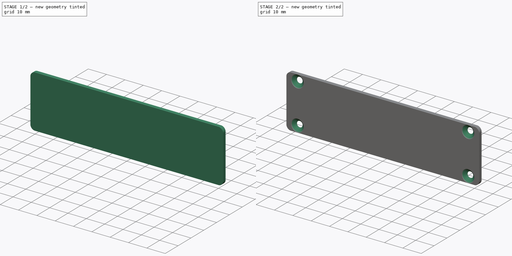
[diagram: build sequence overview — one tinted view per stage of 2, left to right]
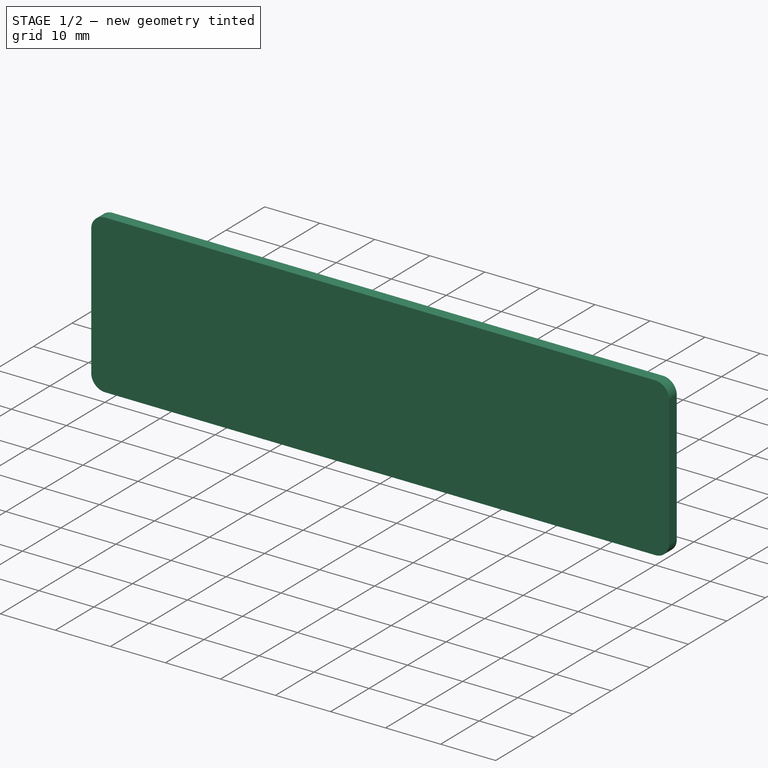
[diagram: stage 1 of 2 — iso view after this stage's code; geometry added in this stage tinted green]
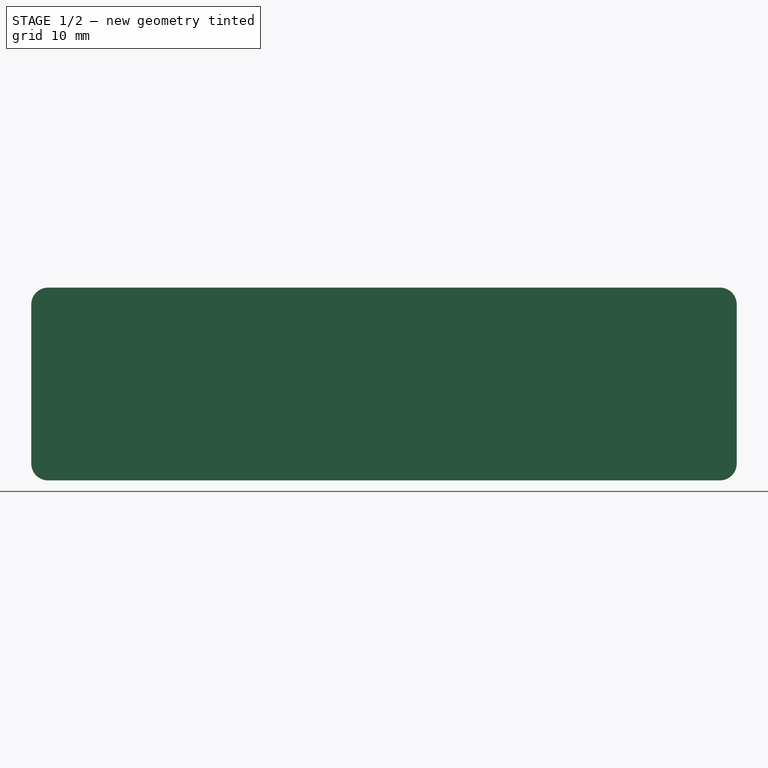
[diagram: stage 1 of 2 — front view after this stage's code; geometry added in this stage tinted green]
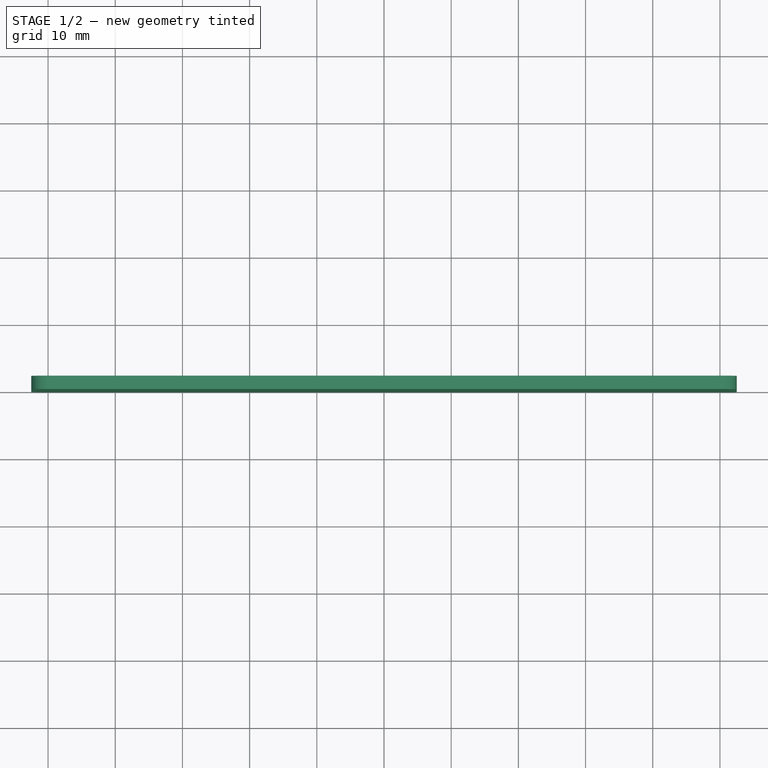
[diagram: stage 1 of 2 — top view after this stage's code; geometry added in this stage tinted green]
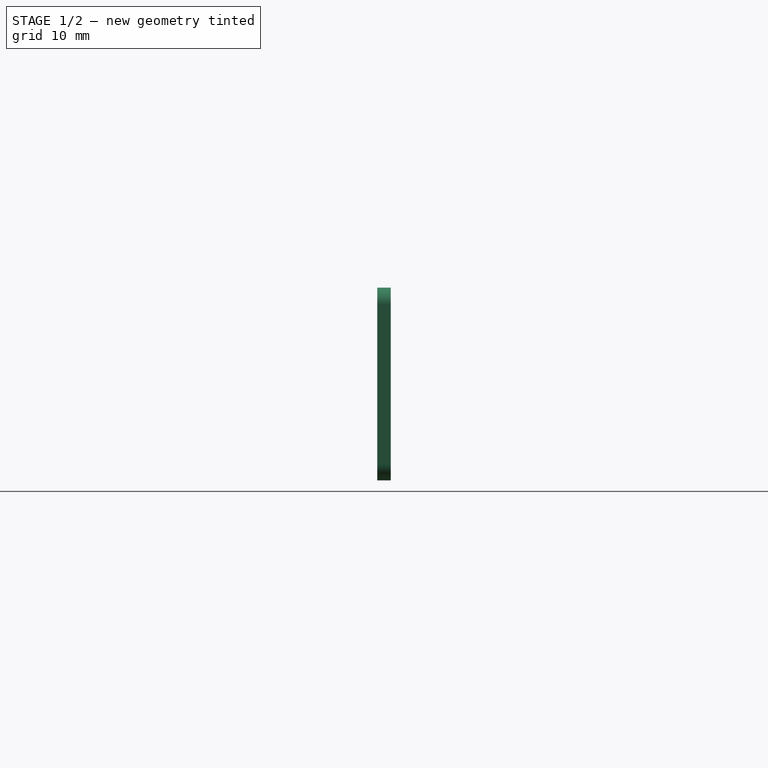
[diagram: stage 1 of 2 — right view after this stage's code; geometry added in this stage tinted green]
FCSTD DOCUMENT  (FreeCAD 0.19R24267 +99 (Git))
Label: KOH_Plate_Back
License: All rights reserved
LicenseURL: http://en.wikipedia.org/wiki/All_rights_reserved
objects: Sketcher::SketchObject×2, PartDesign::CoordinateSystem×2, PartDesign::Pad×1, PartDesign::Fillet×1, PartDesign::Hole×1, PartDesign::Body×1, App::Part×1
note: 11 computed .brp shape members not serialized (recipe doc carries the construction recipe); baked Part::Feature solids carry a one-line shape summary decoded from their .brp

FEATURE [Sketcher::SketchObject] Sketch
  FullyConstrained = true
  MapMode = 5
  Placement = pos=(0,0,0) rot=(1,0,0;1.5708rad)
  Support = -> [XZ_Plane]
  sketch-geometry (4):
    g0: LineSegment StartX=-52.5 StartY=-14.35 StartZ=0 EndX=52.5 EndY=-14.35 EndZ=0
    g1: LineSegment StartX=52.5 StartY=-14.35 StartZ=0 EndX=52.5 EndY=14.35 EndZ=0
    g2: LineSegment StartX=52.5 StartY=14.35 StartZ=0 EndX=-52.5 EndY=14.35 EndZ=0
    g3: LineSegment StartX=-52.5 StartY=14.35 StartZ=0 EndX=-52.5 EndY=-14.35 EndZ=0
  constraints (10):
    c: Coincident(g0,g1)
    c: Coincident(g1,g2)
    c: Coincident(g2,g3)
    c: Coincident(g3,g0)
    c: Horizontal(g0)
    c: Vertical(g1)
    c: Symmetric(g2,g0,g-1)
    c: Symmetric(g2,g1,g-2)
    c: Distance(g2) = 105
    c: Distance(g3) = 28.7
FEATURE [PartDesign::Pad] Pad
  Direction = (1,1,1)
  Length = 2
  Length2 = 100
  Placement = pos=(0,0,0) rot=(1,0,0;1.5708rad)
  Profile = -> Sketch
  Refine = true
  Reversed = true
  Type = 0
FEATURE [PartDesign::Fillet] Fillet
  Base = -> Pad [Edge5,Edge2,Edge8,Edge1]
  BaseFeature = -> Pad
  Placement = pos=(0,0,0) rot=(1,0,0;1.5708rad)
  Radius = 2.5
  Refine = true
  SupportTransform = false
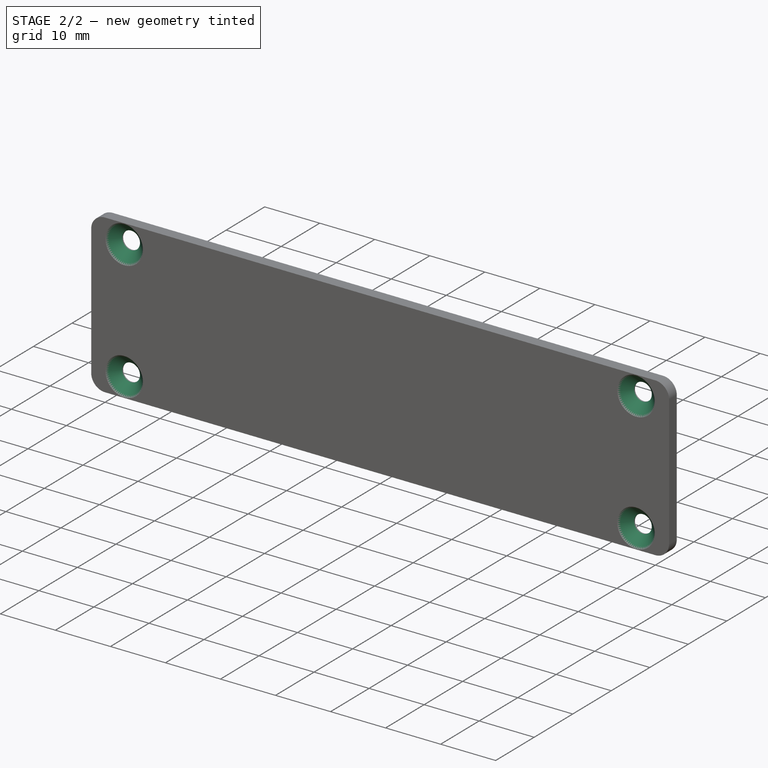
[diagram: stage 2 of 2 — iso view after this stage's code; geometry added in this stage tinted green]
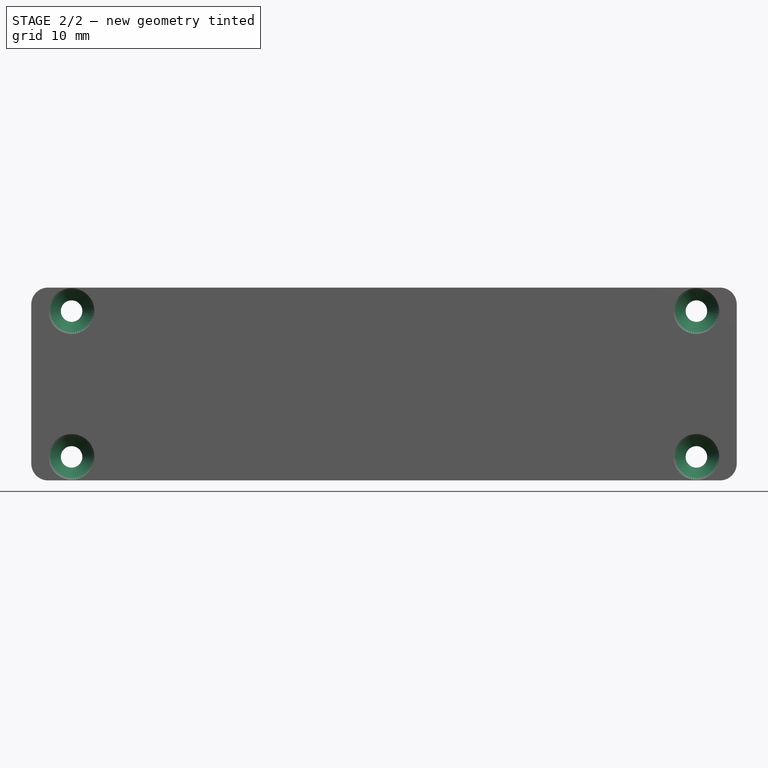
[diagram: stage 2 of 2 — front view after this stage's code; geometry added in this stage tinted green]
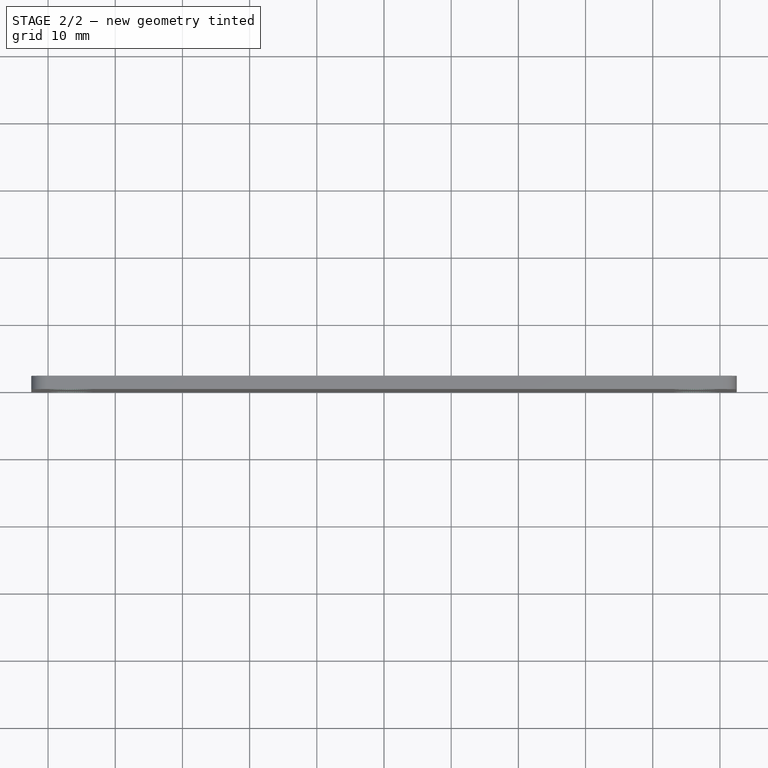
[diagram: stage 2 of 2 — top view after this stage's code; geometry added in this stage tinted green]
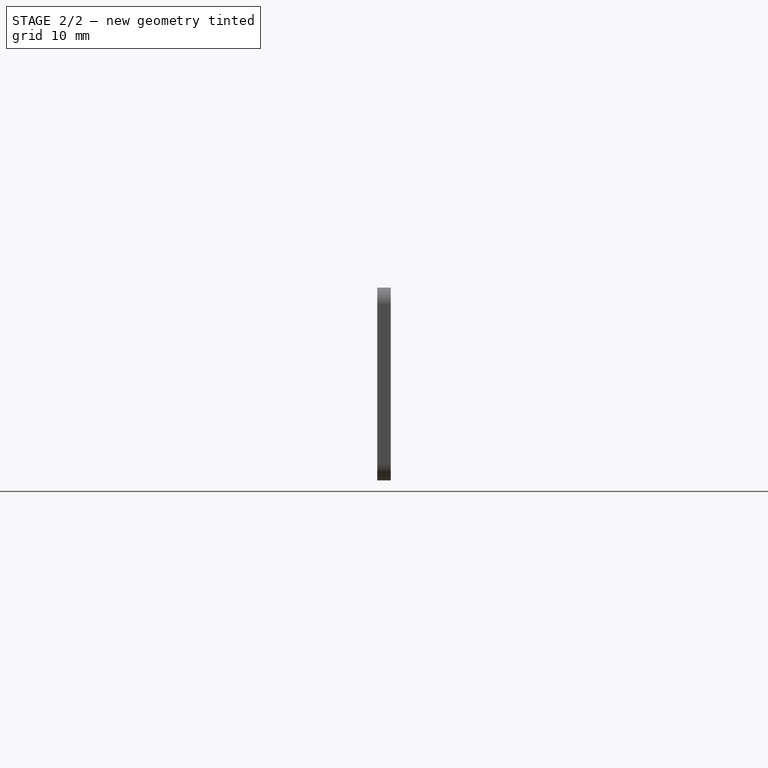
[diagram: stage 2 of 2 — right view after this stage's code; geometry added in this stage tinted green]
FEATURE [Sketcher::SketchObject] Sketch001
  FullyConstrained = true
  MapMode = 5
  Placement = pos=(0,0,0) rot=(1,0,0;1.5708rad)
  Support = -> [XZ_Plane]
  expr: Constraints[9] = Sketch.Constraints[9]
  expr: Constraints[8] = Sketch.Constraints[8]
  sketch-geometry (8):
    g0: LineSegment StartX=-52.5 StartY=-14.35 StartZ=0 EndX=52.5 EndY=-14.35 EndZ=0
    g1: LineSegment StartX=52.5 StartY=-14.35 StartZ=0 EndX=52.5 EndY=14.35 EndZ=0
    g2: LineSegment StartX=52.5 StartY=14.35 StartZ=0 EndX=-52.5 EndY=14.35 EndZ=0
    g3: LineSegment StartX=-52.5 StartY=14.35 StartZ=0 EndX=-52.5 EndY=-14.35 EndZ=0
    g4: Circle CenterX=46.5 CenterY=10.85 CenterZ=0 NormalX=0 NormalY=0 NormalZ=1 AngleXU=0 Radius=1.6
    g5: Circle CenterX=46.5 CenterY=-10.85 CenterZ=0 NormalX=0 NormalY=0 NormalZ=1 AngleXU=0 Radius=1.6
    g6: Circle CenterX=-46.5 CenterY=-10.85 CenterZ=0 NormalX=0 NormalY=0 NormalZ=1 AngleXU=0 Radius=1.6
    g7: Circle CenterX=-46.5 CenterY=10.85 CenterZ=0 NormalX=0 NormalY=0 NormalZ=1 AngleXU=0 Radius=1.6
  constraints (19):
    c: Coincident(g0,g1)
    c: Coincident(g1,g2)
    c: Coincident(g2,g3)
    c: Coincident(g3,g0)
    c: Horizontal(g0)
    c: Vertical(g1)
    c: Symmetric(g2,g0,g-1)
    c: Symmetric(g2,g1,g-2)
    c: Distance(g2) = 105
    c: Distance(g3) = 28.7
    c: Distance(g4,g2) = 3.5
    c: DistanceX(g-2,g4) = 46.5
    c: Diameter(g4) = 3.2
    c: Diameter(g5) = 3.2
    c: Symmetric(g5,g4,g-1)
    c: Diameter(g7) = 3.2
    c: Diameter(g6) = 3.2
    c: Symmetric(g7,g6,g-1)
    c: Symmetric(g7,g4,g-2)
FEATURE [PartDesign::Hole] Hole
  BaseFeature = -> Fillet
  Depth = 25
  DepthType = 0
  Diameter = 3.2
  DrillForDepth = false
  DrillPoint = 1
  DrillPointAngle = 118
  HoleCutCountersinkAngle = 90
  HoleCutCustomValues = false
  HoleCutDepth = 0
  HoleCutDiameter = 6.8
  HoleCutType = 2
  ModelActualThread = false
  Placement = pos=(0,0,0) rot=(1,0,0;1.5708rad)
  Profile = -> Sketch001
  Refine = true
  Tapered = false
  TaperedAngle = 90
  ThreadAngle = 0
  ThreadClass = 0
  ThreadCutOffInner = 0
  ThreadCutOffOuter = 0
  ThreadDirection = 0
  ThreadFit = 0
  ThreadPitch = 0
  ThreadSize = 0
  ThreadType = 0
  Threaded = false
FEATURE [PartDesign::Body] Body
  Group = -> [Sketch,Pad,Fillet,Sketch001,Hole]
  Origin = -> Origin
  Tip = -> Hole
FEATURE [PartDesign::CoordinateSystem] LCS_0  label="LCS_PlateBack_Center"
  AttacherType = Attacher::AttachEngine3D
  MapMode = 2
  Support = -> [X_Axis001]
FEATURE [PartDesign::CoordinateSystem] LCS_Plate_Back_CornerBottom
  AttacherType = Attacher::AttachEngine3D
  AttachmentOffset = pos=(52.5,-14.35,0) rot=(0,0.707107,0.707107;3.14159rad)
  MapMode = 5
  Placement = pos=(52.5,3.2e-15,-14.35) rot=(0,0,1;3.14159rad)
  Support = -> [XZ_Plane001]
FEATURE [App::Part] Plate_Back
  Group = -> [LCS_0,Body,LCS_Plate_Back_CornerBottom]
  Origin = -> Origin001
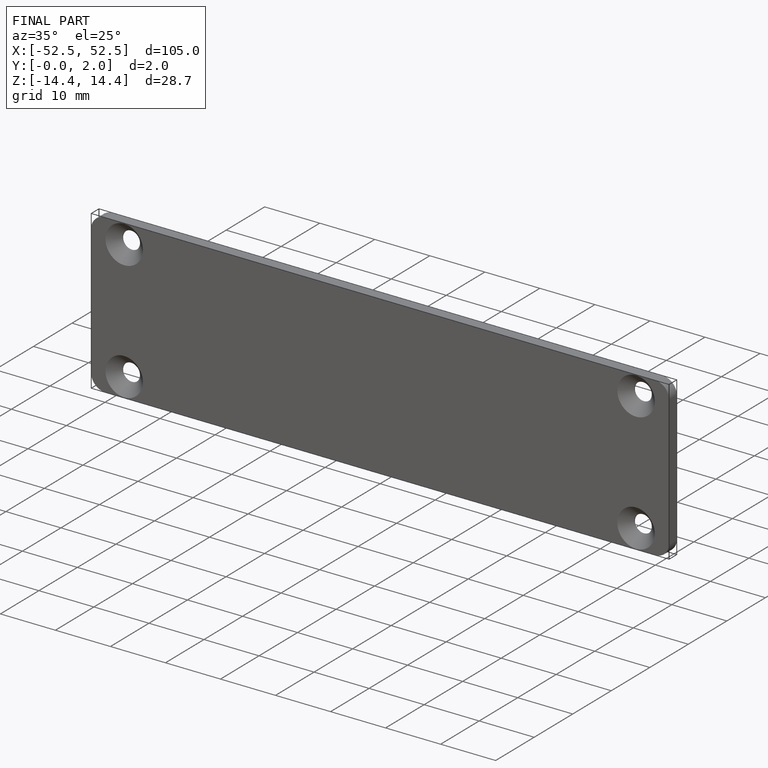
[diagram: finished part — iso view with bounding-box wireframe]
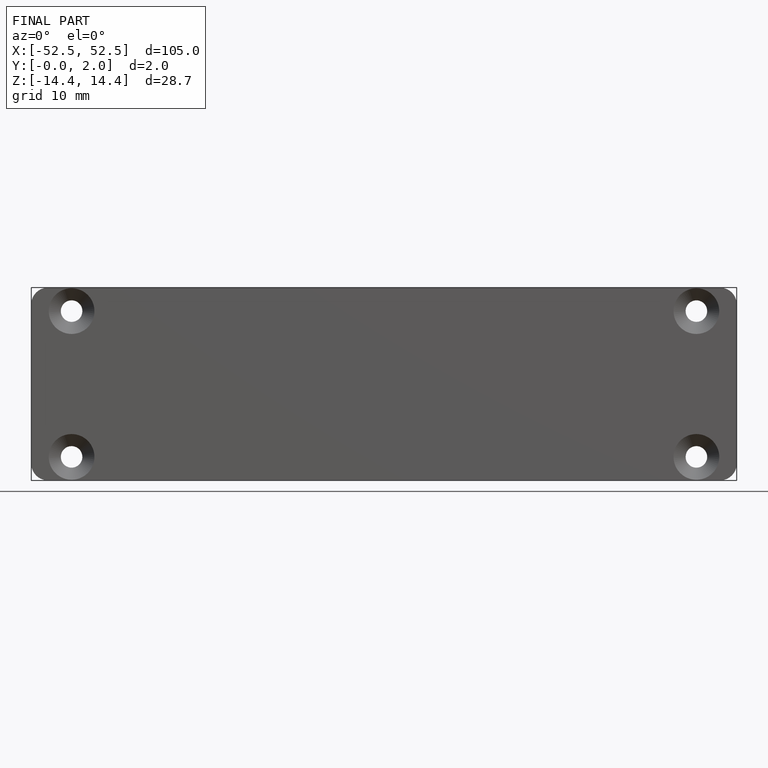
[diagram: finished part — front view with bounding-box wireframe]
